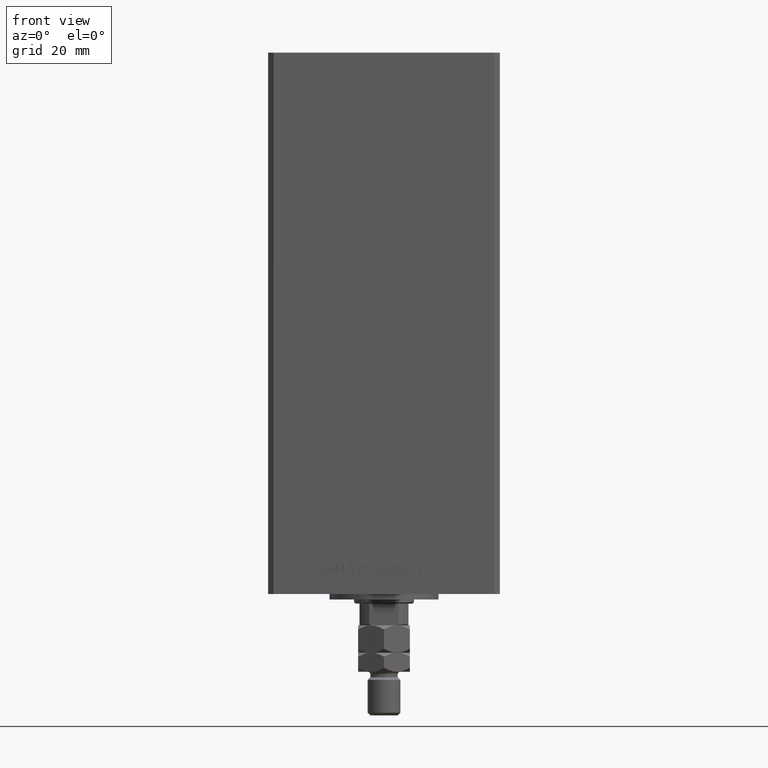
[diagram: clean part render]
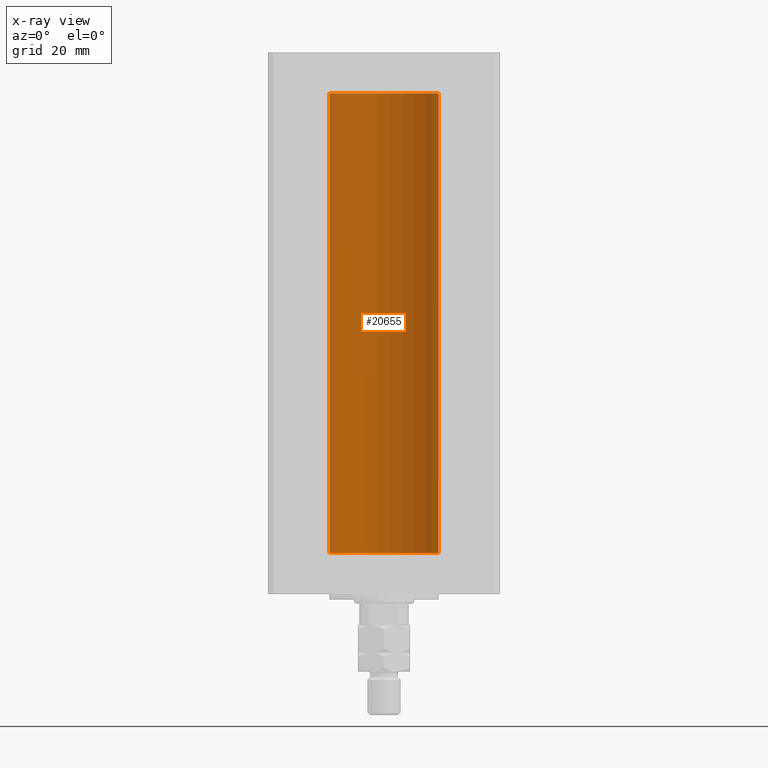
[diagram: x-ray — body ghosted, one internal face saturated and labeled with its STEP entity id]
A machine part, front view, then the same camera in x-ray: the body is ghosted and one INTERNAL B-rep face — a face not visible from any outside direction — is saturated and labeled: STEP entity #20655.
In plain terms, the highlighted cylindrical surface (partial cylindrical patch) has radius 20 mm, axis along (-0, -0, -1).
Its self-contained STEP definition (entity closure, byte-faithful):
#64 = AXIS2_PLACEMENT_3D ( 'NONE', #43446, #1022, #13037 ) ;
#1022 = DIRECTION ( 'NONE',  ( -0.000000000000000000, 0.000000000000000000, 1.000000000000000000 ) ) ;
#3147 = ORIENTED_EDGE ( 'NONE', *, *, #27790, .F. ) ;
#4767 = EDGE_CURVE ( 'NONE', #30268, #20143, #4958, .T. ) ;
#4958 = CIRCLE ( 'NONE', #64, 20.00000000000000000 ) ;
#6173 = EDGE_CURVE ( 'NONE', #22665, #24137, #46626, .T. ) ;
#8183 = CYLINDRICAL_SURFACE ( 'NONE', #11921, 20.00000000000000000 ) ;
#8285 = EDGE_LOOP ( 'NONE', ( #3147, #29760, #47508, #37086 ) ) ;
#10249 = CARTESIAN_POINT ( 'NONE',  ( 20.00000000000000000, 2.449293598294706513E-15, 168.5000000000000000 ) ) ;
#11036 = VECTOR ( 'NONE', #47403, 1000.000000000000000 ) ;
#11269 = FACE_OUTER_BOUND ( 'NONE', #8285, .T. ) ;
#11653 = DIRECTION ( 'NONE',  ( -0.000000000000000000, 0.000000000000000000, 1.000000000000000000 ) ) ;
#11767 = DIRECTION ( 'NONE',  ( -1.000000000000000000, 0.000000000000000000, 0.000000000000000000 ) ) ;
#11921 = AXIS2_PLACEMENT_3D ( 'NONE', #43431, #15108, #11767 ) ;
#12913 = LINE ( 'NONE', #31820, #11036 ) ;
#13037 = DIRECTION ( 'NONE',  ( 1.000000000000000000, 0.000000000000000000, 0.000000000000000000 ) ) ;
#13707 = CARTESIAN_POINT ( 'NONE',  ( -20.00000000000000000, 0.000000000000000000, 0.000000000000000000 ) ) ;
#14255 = DIRECTION ( 'NONE',  ( -0.000000000000000000, -0.000000000000000000, -1.000000000000000000 ) ) ;
#14512 = LINE ( 'NONE', #25494, #36152 ) ;
#15108 = DIRECTION ( 'NONE',  ( -0.000000000000000000, -0.000000000000000000, -1.000000000000000000 ) ) ;
#20143 = VERTEX_POINT ( 'NONE', #27199 ) ;
#20655 = ADVANCED_FACE ( 'NONE', ( #11269 ), #8183, .F. ) ;
#21554 = CARTESIAN_POINT ( 'NONE',  ( 20.00000000000000000, 2.449293598294706513E-15, 0.000000000000000000 ) ) ;
#22665 = VERTEX_POINT ( 'NONE', #21554 ) ;
#24137 = VERTEX_POINT ( 'NONE', #13707 ) ;
#25494 = CARTESIAN_POINT ( 'NONE',  ( 20.00000000000000000, 2.449293598294706513E-15, 168.5000000000000000 ) ) ;
#27199 = CARTESIAN_POINT ( 'NONE',  ( -20.00000000000000000, 0.000000000000000000, 168.5000000000000000 ) ) ;
#27790 = EDGE_CURVE ( 'NONE', #30268, #22665, #14512, .T. ) ;
#29760 = ORIENTED_EDGE ( 'NONE', *, *, #4767, .T. ) ;
#30268 = VERTEX_POINT ( 'NONE', #10249 ) ;
#31820 = CARTESIAN_POINT ( 'NONE',  ( -20.00000000000000000, 0.000000000000000000, 168.5000000000000000 ) ) ;
#36152 = VECTOR ( 'NONE', #14255, 1000.000000000000000 ) ;
#36618 = EDGE_CURVE ( 'NONE', #20143, #24137, #12913, .T. ) ;
#36795 = AXIS2_PLACEMENT_3D ( 'NONE', #46663, #11653, #42817 ) ;
#37086 = ORIENTED_EDGE ( 'NONE', *, *, #6173, .F. ) ;
#42817 = DIRECTION ( 'NONE',  ( 1.000000000000000000, 0.000000000000000000, 0.000000000000000000 ) ) ;
#43431 = CARTESIAN_POINT ( 'NONE',  ( 0.000000000000000000, 0.000000000000000000, 168.5000000000000000 ) ) ;
#43446 = CARTESIAN_POINT ( 'NONE',  ( 0.000000000000000000, 0.000000000000000000, 168.5000000000000000 ) ) ;
#46626 = CIRCLE ( 'NONE', #36795, 20.00000000000000000 ) ;
#46663 = CARTESIAN_POINT ( 'NONE',  ( 0.000000000000000000, 0.000000000000000000, 0.000000000000000000 ) ) ;
#47403 = DIRECTION ( 'NONE',  ( -0.000000000000000000, -0.000000000000000000, -1.000000000000000000 ) ) ;
#47508 = ORIENTED_EDGE ( 'NONE', *, *, #36618, .T. ) ;